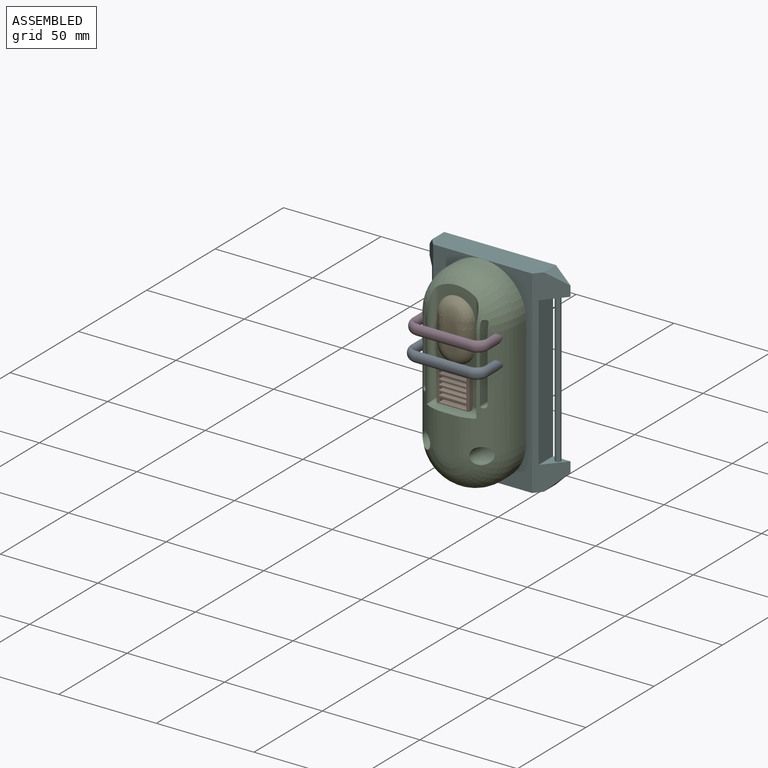
[diagram: assembled view]
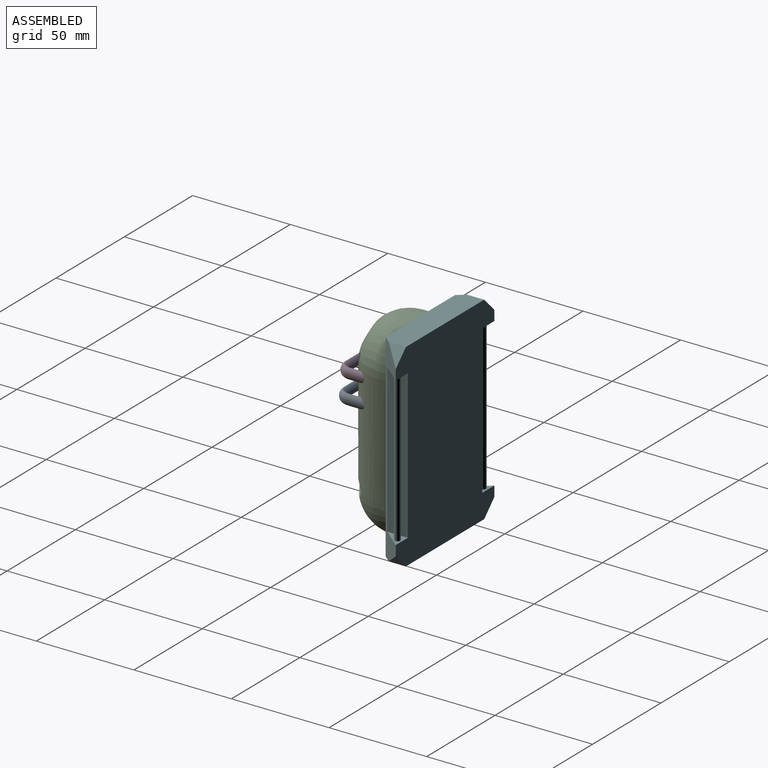
[diagram: assembled view, second angle]
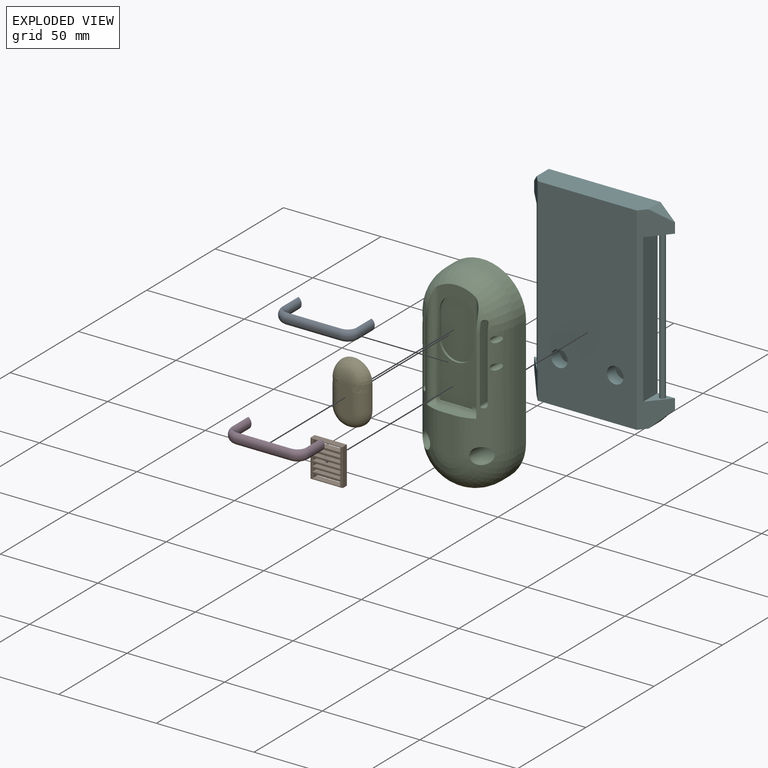
[diagram: exploded view]
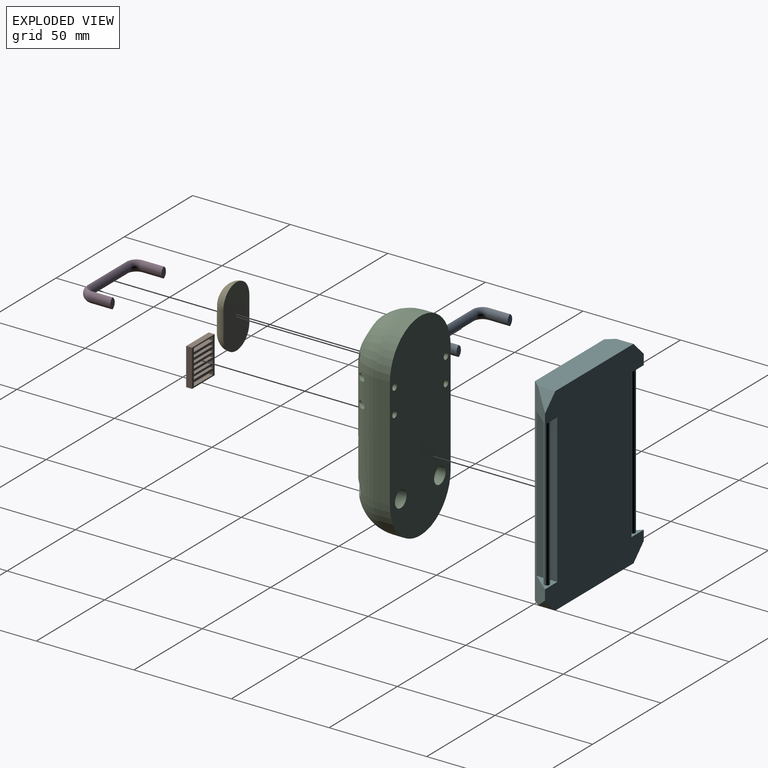
[diagram: exploded view, second angle]
ASSEMBLY  parts=6 mates=4
PART A: 32 faces, bbox 41.7x17.6x6.4 mm
  f0: cylinder r=3.17mm len=3.18mm, axis (0,0,-1), area 1.3mm2, adj f1,f11,f13,f24
  f1: plane 10.71x0.25mm, normal (1,0,0), area 2.7mm2, adj f0,f2,f12,f22
  f2: plane 5.6x3.18mm, normal (0,1,0), area 12.9mm2, adj f1,f3,f12,f14,f22,f23
  f3: plane 10.71x0.25mm, normal (-1,0,0), area 2.7mm2, adj f2,f4,f14,f23
  f4: cylinder r=6.35mm len=6.35mm, axis (0,0,-1), area 2.5mm2, adj f3,f5,f16,f25
  f5: plane 27.94x0.25mm, normal (0,-1,0), area 7.1mm2, adj f4,f6,f18,f27
  f6: cylinder r=6.35mm len=6.35mm, axis (0,0,-1), area 2.5mm2, adj f5,f7,f20,f29
  f7: plane 10.71x0.25mm, normal (1,0,0), area 2.7mm2, adj f6,f8,f21,f31
  f8: plane 5.6x3.18mm, normal (0,1,0), area 12.9mm2, adj f7,f9,f19,f21,f30,f31
  f9: plane 10.71x0.25mm, normal (-1,0,0), area 2.7mm2, adj f8,f10,f19,f30
  f10: cylinder r=3.17mm len=3.18mm, axis (0,0,-1), area 1.3mm2, adj f9,f11,f17,f28
  f11: plane 27.94x0.25mm, normal (0,1,0), area 7.1mm2, adj f0,f10,f15,f26
  f12: cylinder r=3.05mm len=10.71mm, axis (0,1,0), area 35mm2, adj f1,f2,f13,f14
  f13: torus R=6.22mm, axis (0,0,1), area 19.1mm2, adj f0,f12,f15,f16
  f14: cylinder r=3.05mm len=10.71mm, axis (0,-1,0), area 35mm2, adj f2,f3,f12,f16
  f15: cylinder r=3.05mm len=27.94mm, axis (-1,0,0), area 91.2mm2, adj f11,f13,f17,f18
  f16: torus R=3.3mm, axis (0,0,1), area 29.7mm2, adj f4,f13,f14,f18
  f17: torus R=6.22mm, axis (0,0,1), area 19.1mm2, adj f10,f15,f19,f20
  f18: cylinder r=3.05mm len=27.94mm, axis (1,0,0), area 91.2mm2, adj f5,f15,f16,f20
  f19: cylinder r=3.05mm len=10.71mm, axis (0,-1,0), area 35mm2, adj f8,f9,f17,f21
  f20: torus R=3.3mm, axis (0,0,1), area 29.7mm2, adj f6,f17,f18,f21
  f21: cylinder r=3.05mm len=10.71mm, axis (0,1,0), area 35mm2, adj f7,f8,f19,f20
  f22: cylinder r=3.05mm len=10.71mm, axis (0,-1,0), area 35mm2, adj f1,f2,f23,f24
  f23: cylinder r=3.05mm len=10.71mm, axis (0,1,0), area 35mm2, adj f2,f3,f22,f25
  f24: torus R=6.22mm, axis (0,0,1), area 19.1mm2, adj f0,f22,f25,f26
  f25: torus R=3.3mm, axis (0,0,1), area 29.7mm2, adj f4,f23,f24,f27
  f26: cylinder r=3.05mm len=27.94mm, axis (1,0,0), area 91.2mm2, adj f11,f24,f27,f28
  f27: cylinder r=3.05mm len=27.94mm, axis (-1,0,0), area 91.2mm2, adj f5,f25,f26,f29
  f28: torus R=6.22mm, axis (0,0,1), area 19.1mm2, adj f10,f26,f29,f30
  f29: torus R=3.3mm, axis (0,0,1), area 29.7mm2, adj f6,f27,f28,f31
  f30: cylinder r=3.05mm len=10.71mm, axis (0,1,0), area 35mm2, adj f8,f9,f28,f31
  f31: cylinder r=3.05mm len=10.71mm, axis (0,-1,0), area 35mm2, adj f7,f8,f29,f30
PART B: 66 faces, bbox 16.5x19.1x3.2 mm
  f0: plane 2.92x1.31mm, normal (-1,0,0), area 3.8mm2, adj f1,f31,f33,f34
  f1: plane 13.93x2.92mm, normal (0,1,0), area 40.7mm2, adj f0,f2,f33,f36
  f2: plane 2.92x1.31mm, normal (1,0,0), area 3.8mm2, adj f1,f31,f33,f37
  f3: plane 2.92x1.36mm, normal (-1,0,0), area 4mm2, adj f4,f24,f33,f39
  f4: plane 13.93x2.92mm, normal (0,1,0), area 40.7mm2, adj f3,f5,f33,f38
  f5: plane 2.92x1.36mm, normal (1,0,0), area 4mm2, adj f4,f24,f33,f40
  f6: plane 2.92x1.42mm, normal (-1,0,0), area 4.1mm2, adj f7,f25,f33,f43
  f7: plane 13.93x2.92mm, normal (0,1,0), area 40.7mm2, adj f6,f8,f33,f42
  f8: plane 2.92x1.42mm, normal (1,0,0), area 4.1mm2, adj f7,f25,f33,f44
  f9: plane 2.92x1.43mm, normal (-1,0,0), area 4.2mm2, adj f10,f26,f33,f47
  f10: plane 13.93x2.92mm, normal (0,1,0), area 40.7mm2, adj f9,f11,f33,f46
  f11: plane 2.92x1.43mm, normal (1,0,0), area 4.2mm2, adj f10,f26,f33,f48
  f12: plane 2.92x1.34mm, normal (-1,0,0), area 3.9mm2, adj f13,f27,f33,f51
  f13: plane 13.93x2.92mm, normal (0,1,0), area 40.7mm2, adj f12,f14,f33,f50
  f14: plane 2.92x1.34mm, normal (1,0,0), area 3.9mm2, adj f13,f27,f33,f52
  f15: plane 2.92x1.88mm, normal (-1,0,0), area 5.5mm2, adj f16,f28,f33,f55
  f16: plane 13.93x2.92mm, normal (0,1,0), area 40.7mm2, adj f15,f17,f33,f54
  f17: plane 2.92x1.88mm, normal (1,0,0), area 5.5mm2, adj f16,f28,f33,f56
  f18: plane 13.93x2.92mm, normal (0,-1,0), area 40.7mm2, adj f19,f29,f33,f59
  f19: plane 2.92x1.93mm, normal (-1,0,0), area 5.6mm2, adj f18,f20,f33,f58
  f20: plane 13.93x2.92mm, normal (0,1,0), area 40.7mm2, adj f19,f29,f33,f60
  f21: plane 16.51x2.92mm, normal (0,-1,0), area 48.2mm2, adj f22,f30,f33,f64
  f22: plane 19.05x2.92mm, normal (1,0,0), area 55.6mm2, adj f21,f23,f33,f62
  f23: plane 16.51x2.92mm, normal (0,1,0), area 48.2mm2, adj f22,f30,f33,f63
  f24: plane 13.93x2.92mm, normal (0,-1,0), area 40.7mm2, adj f3,f5,f33,f41
  f25: plane 13.93x2.92mm, normal (0,-1,0), area 40.7mm2, adj f6,f8,f33,f45
  f26: plane 13.93x2.92mm, normal (0,-1,0), area 40.7mm2, adj f9,f11,f33,f49
  f27: plane 13.93x2.92mm, normal (0,-1,0), area 40.7mm2, adj f12,f14,f33,f53
  f28: plane 13.93x2.92mm, normal (0,-1,0), area 40.7mm2, adj f15,f17,f33,f57
  f29: plane 2.92x1.93mm, normal (1,0,0), area 5.6mm2, adj f18,f20,f33,f61
  f30: plane 19.05x2.92mm, normal (-1,0,0), area 55.6mm2, adj f21,f23,f33,f65
  f31: plane 13.93x2.92mm, normal (0,-1,0), area 40.7mm2, adj f0,f2,f33,f35
  f32: plane 18.54x16mm, normal (0,0,1), area 91.3mm2, adj f34,f35,f36,f37,f38,f39,f40,f41
  f33: plane 19.05x16.51mm, normal (0,0,-1), area 165.8mm2, adj f0,f1,f2,f3,f4,f5,f6,f7
  f34: cylinder r=0.25mm len=1.82mm, axis (0,1,0), area 0.6mm2, adj f0,f32,f35,f36
  f35: cylinder r=0.25mm len=14.44mm, axis (-1,0,0), area 5.6mm2, adj f31,f32,f34,f37
  f36: cylinder r=0.25mm len=14.44mm, axis (1,0,0), area 5.6mm2, adj f1,f32,f34,f37
  f37: cylinder r=0.25mm len=1.82mm, axis (0,-1,0), area 0.6mm2, adj f2,f32,f35,f36
  f38: cylinder r=0.25mm len=14.44mm, axis (1,0,0), area 5.6mm2, adj f4,f32,f39,f40
  f39: cylinder r=0.25mm len=1.87mm, axis (0,1,0), area 0.6mm2, adj f3,f32,f38,f41
  f40: cylinder r=0.25mm len=1.87mm, axis (0,-1,0), area 0.6mm2, adj f5,f32,f38,f41
  f41: cylinder r=0.25mm len=14.44mm, axis (-1,0,0), area 5.6mm2, adj f24,f32,f39,f40
  f42: cylinder r=0.25mm len=14.44mm, axis (1,0,0), area 5.6mm2, adj f7,f32,f43,f44
  f43: cylinder r=0.25mm len=1.92mm, axis (0,1,0), area 0.6mm2, adj f6,f32,f42,f45
  f44: cylinder r=0.25mm len=1.92mm, axis (0,-1,0), area 0.6mm2, adj f8,f32,f42,f45
  f45: cylinder r=0.25mm len=14.44mm, axis (-1,0,0), area 5.6mm2, adj f25,f32,f43,f44
  f46: cylinder r=0.25mm len=14.44mm, axis (1,0,0), area 5.6mm2, adj f10,f32,f47,f48
  f47: cylinder r=0.25mm len=1.94mm, axis (0,1,0), area 0.6mm2, adj f9,f32,f46,f49
  f48: cylinder r=0.25mm len=1.94mm, axis (0,-1,0), area 0.6mm2, adj f11,f32,f46,f49
  f49: cylinder r=0.25mm len=14.44mm, axis (-1,0,0), area 5.6mm2, adj f26,f32,f47,f48
  f50: cylinder r=0.25mm len=14.44mm, axis (1,0,0), area 5.6mm2, adj f13,f32,f51,f52
  f51: cylinder r=0.25mm len=1.85mm, axis (0,1,0), area 0.6mm2, adj f12,f32,f50,f53
  f52: cylinder r=0.25mm len=1.85mm, axis (0,-1,0), area 0.6mm2, adj f14,f32,f50,f53
  f53: cylinder r=0.25mm len=14.44mm, axis (-1,0,0), area 5.6mm2, adj f27,f32,f51,f52
  f54: cylinder r=0.25mm len=14.44mm, axis (1,0,0), area 5.6mm2, adj f16,f32,f55,f56
  f55: cylinder r=0.25mm len=2.39mm, axis (0,1,0), area 0.8mm2, adj f15,f32,f54,f57
  f56: cylinder r=0.25mm len=2.39mm, axis (0,-1,0), area 0.8mm2, adj f17,f32,f54,f57
  f57: cylinder r=0.25mm len=14.44mm, axis (-1,0,0), area 5.6mm2, adj f28,f32,f55,f56
  f58: cylinder r=0.25mm len=2.44mm, axis (0,1,0), area 0.8mm2, adj f19,f32,f59,f60
  f59: cylinder r=0.25mm len=14.44mm, axis (-1,0,0), area 5.6mm2, adj f18,f32,f58,f61
  f60: cylinder r=0.25mm len=14.44mm, axis (1,0,0), area 5.6mm2, adj f20,f32,f58,f61
  f61: cylinder r=0.25mm len=2.44mm, axis (0,-1,0), area 0.8mm2, adj f29,f32,f59,f60
  f62: cylinder r=0.25mm len=19.05mm, axis (0,-1,0), area 7.5mm2, adj f22,f32,f63,f64
  f63: cylinder r=0.25mm len=16.51mm, axis (1,0,0), area 6.5mm2, adj f23,f32,f62,f65
  f64: cylinder r=0.25mm len=16.51mm, axis (-1,0,0), area 6.5mm2, adj f21,f32,f62,f65
  f65: cylinder r=0.25mm len=19.05mm, axis (0,1,0), area 7.5mm2, adj f30,f32,f63,f64
PART C: 43 faces, bbox 44.5x25.4x101.6 mm
  f0: plane 53.89x19.05mm, normal (0,-1,0), area 246.7mm2, adj f1,f4,f27,f28,f33,f34,f35,f36
  f1: cylinder r=3.17mm len=25.4mm, axis (1,0,0), area 87.7mm2, adj f0,f12,f27,f28,f38,f39,f41
  f2: cylinder r=19.05mm len=57.15mm, axis (0,0,1), area 1132.9mm2, adj f4,f6,f8,f11,f12,f14,f15,f17
  f3: plane 101.6x44.45mm, normal (0,1,0), area 3945.3mm2, adj f7,f8,f9,f10,f15,f16,f29,f30
  f4: torus R=3.17mm, axis (0,-1,0), area 972.1mm2, adj f0,f2,f5,f7,f13,f14,f17,f18
  f5: cylinder r=19.05mm len=57.15mm, axis (0,0,-1), area 1132.9mm2, adj f4,f6,f10,f11,f12,f13,f16,f23
  f6: torus R=3.17mm, axis (0,-1,0), area 1369.7mm2, adj f2,f5,f9,f11,f15,f16
  f7: cylinder r=22.23mm len=44.45mm, axis (0,1,0), area 440.6mm2, adj f3,f4,f8,f10
  f8: plane 57.15x6.31mm, normal (-1,0,0), area 360.7mm2, adj f2,f3,f7,f9
  f9: cylinder r=22.23mm len=44.45mm, axis (0,1,0), area 440.6mm2, adj f3,f6,f8,f10
  f10: plane 57.15x6.31mm, normal (1,0,0), area 360.7mm2, adj f3,f5,f7,f9
  f11: plane 20.64x6.35mm, normal (0,-1,0), area 126.7mm2, adj f2,f5,f6,f12
  f12: plane 25.4x3.18mm, normal (0,0,1), area 64.9mm2, adj f1,f2,f5,f11,f13,f14
  f13: plane 44.84x0.63mm, normal (-1,0,0), area 26.9mm2, adj f4,f5,f12,f28
  f14: plane 44.84x0.63mm, normal (1,0,0), area 26.9mm2, adj f2,f4,f12,f27
  f15: cylinder r=4.23mm len=24.08mm, axis (0,-1,0), area 564.6mm2, adj f2,f3,f6
  f16: cylinder r=4.23mm len=24.08mm, axis (0,-1,0), area 564.6mm2, adj f3,f5,f6
  f17: plane 38.1x9.35mm, normal (-1,0,0), area 355.3mm2, adj f2,f4,f18,f20,f21
  f18: cylinder r=1.27mm len=8.83mm, axis (0,-1,0), area 30.1mm2, adj f4,f17,f19,f21
  f19: plane 38.1x7.26mm, normal (1,0,0), area 275.5mm2, adj f2,f4,f18,f20,f21
  f20: cylinder r=1.27mm len=9.35mm, axis (0,-1,0), area 33.3mm2, adj f2,f17,f19,f21
  f21: plane 40.64x2.54mm, normal (0,-1,0), area 101.8mm2, adj f17,f18,f19,f20
  f22: cylinder r=1.27mm len=8.83mm, axis (0,-1,0), area 30.1mm2, adj f4,f23,f25,f26
  f23: plane 38.1x9.35mm, normal (1,0,0), area 355.3mm2, adj f4,f5,f22,f24,f26
  f24: cylinder r=1.27mm len=9.35mm, axis (0,-1,0), area 33.3mm2, adj f5,f23,f25,f26
  f25: plane 38.1x7.26mm, normal (-1,0,0), area 275.5mm2, adj f4,f5,f22,f24,f26
  f26: plane 40.64x2.54mm, normal (0,-1,0), area 101.8mm2, adj f22,f23,f24,f25
  f27: cylinder r=3.17mm len=54.22mm, axis (0,0,-1), area 247.1mm2, adj f0,f1,f4,f14
  f28: cylinder r=3.17mm len=54.22mm, axis (0,0,1), area 247.1mm2, adj f0,f1,f4,f13
  f29: cylinder r=1.65mm len=19.26mm, axis (0,1,0), area 176.5mm2, adj f2,f3
  f30: cylinder r=1.65mm len=19.26mm, axis (0,1,0), area 176.5mm2, adj f3,f5
  f31: cylinder r=1.65mm len=19.26mm, axis (0,1,0), area 176.5mm2, adj f3,f5
  f32: cylinder r=1.65mm len=19.26mm, axis (0,1,0), area 176.5mm2, adj f2,f3
  f33: cylinder r=8.89mm len=17.78mm, axis (0,-1,0), area 35.5mm2, adj f0,f34,f36,f37
  f34: plane 12.7x1.27mm, normal (1,0,0), area 16.1mm2, adj f0,f33,f35,f37
  f35: cylinder r=8.89mm len=17.78mm, axis (0,-1,0), area 35.5mm2, adj f0,f34,f36,f37
  f36: plane 12.7x1.27mm, normal (-1,0,0), area 16.1mm2, adj f0,f33,f35,f37
  f37: plane 30.48x17.78mm, normal (0,-1,0), area 474.1mm2, adj f33,f34,f35,f36
  f38: plane 16.51x0.68mm, normal (0,0,1), area 11.2mm2, adj f1,f39,f41,f42
  f39: plane 19.05x0.68mm, normal (-1,0,0), area 5.1mm2, adj f0,f1,f38,f40,f42
  f40: plane 16.51x0.25mm, normal (0,0,-1), area 4.2mm2, adj f0,f39,f41,f42
  f41: plane 19.05x0.68mm, normal (1,0,0), area 5.1mm2, adj f0,f1,f38,f40,f42
  f42: plane 19.05x16.51mm, normal (0,-1,0), area 314.5mm2, adj f38,f39,f40,f41
PART D: same geometry as A
PART E: 13 faces, bbox 19.1x6.4x31.8 mm
  f0: plane 31.75x19.05mm, normal (0,1,0), area 527mm2, adj f1,f2,f3,f4
  f1: plane 12.7x0.02mm, normal (1,0,0), area 0.3mm2, adj f0,f2,f4,f10,f12
  f2: cylinder r=9.53mm len=19.05mm, axis (0,1,0), area 0.6mm2, adj f0,f1,f3,f11
  f3: plane 12.7x0.02mm, normal (-1,0,0), area 0.3mm2, adj f0,f2,f4,f7,f8
  f4: cylinder r=9.53mm len=19.05mm, axis (0,1,0), area 0.6mm2, adj f0,f1,f3,f9
  f5: torus R=3.17mm, axis (0,-1,0), area 36.9mm2, adj f6,f7,f9,f10
  f6: plane 15.71x6.35mm, normal (0,-1,0), area 91.1mm2, adj f5,f8,f11,f12
  f7: bspline ~6.35x6.35mm, area 35.7mm2, adj f3,f5,f8,f9
  f8: cylinder r=6.35mm len=9.36mm, axis (0,0,1), area 93.4mm2, adj f3,f6,f7,f11
  f9: bspline ~19.05x11.6mm, area 197.4mm2, adj f4,f5,f7,f10
  f10: bspline ~6.35x6.35mm, area 35.7mm2, adj f1,f5,f9,f12
  f11: torus R=3.17mm, axis (0,-1,0), area 226.2mm2, adj f2,f6,f8,f12
  f12: cylinder r=6.35mm len=9.36mm, axis (0,0,-1), area 93.4mm2, adj f1,f6,f10,f11
PART F: 24 faces, bbox 72.2x12.7x101.6 mm
  f0: plane 101.6x50.8mm, normal (0,-1,0), area 5048.7mm2, adj f4,f5,f6,f7,f20,f22
  f1: plane 101.6x72.2mm, normal (0,1,0), area 5864.5mm2, adj f2,f3,f4,f5,f8,f9,f10,f12
  f2: plane 101.6x12.67mm, normal (0.76,-0.65,0), area 544.7mm2, adj f1,f4,f5,f6,f12,f13,f14,f16
  f3: plane 101.6x12.67mm, normal (-0.76,-0.65,0), area 544.9mm2, adj f1,f4,f5,f7,f8,f9,f10,f17
  f4: plane 57.27x12.7mm, normal (0,0,-1), area 714.8mm2, adj f0,f1,f2,f3,f6,f7,f18,f19
  f5: plane 57.27x12.7mm, normal (0,0,1), area 714.8mm2, adj f0,f1,f2,f3,f6,f7,f16,f17
  f6: plane 101.6x0.04mm, normal (1,0,0), area 3.1mm2, adj f0,f2,f4,f5
  f7: plane 101.6x0.03mm, normal (-1,0,0), area 3.1mm2, adj f0,f3,f4,f5
  f8: plane 76.2x10.56mm, normal (-1,0,0), area 804.9mm2, adj f1,f3,f9,f10
  f9: plane 10.56x8.92mm, normal (0,0,1), area 40.7mm2, adj f1,f3,f8,f11
  f10: plane 10.56x8.92mm, normal (0,0,-1), area 40.7mm2, adj f1,f3,f8,f11
  f11: cylinder r=1.43mm len=76.2mm, axis (0,0,1), area 684.2mm2, adj f9,f10
  f12: plane 76.2x10.56mm, normal (1,0,0), area 804.9mm2, adj f1,f2,f13,f14
  f13: plane 10.56x8.92mm, normal (0,0,1), area 40.7mm2, adj f1,f2,f12,f15
  f14: plane 10.56x8.92mm, normal (0,0,-1), area 40.7mm2, adj f1,f2,f12,f15
  f15: cylinder r=1.43mm len=76.2mm, axis (0,0,1), area 684.2mm2, adj f13,f14
  f16: plane 8.84x7.46mm, normal (0.71,0,0.71), area 46.7mm2, adj f1,f2,f5
  f17: plane 8.84x7.46mm, normal (-0.71,0,0.71), area 46.7mm2, adj f1,f3,f5
  f18: plane 8.84x7.46mm, normal (-0.71,0,-0.71), area 46.7mm2, adj f1,f3,f4
  f19: plane 8.84x7.46mm, normal (0.71,0,-0.71), area 46.7mm2, adj f1,f2,f4
  f20: cylinder r=4.23mm len=8.47mm, axis (0,-1,0), area 168.9mm2, adj f0,f21
  f21: plane 8.47x8.47mm, normal (0,-1,0), area 56.3mm2, adj f20
  f22: cylinder r=4.23mm len=8.47mm, axis (0,-1,0), area 168.9mm2, adj f0,f23
  f23: plane 8.47x8.47mm, normal (0,-1,0), area 56.3mm2, adj f22
PLACE A t=(-75.03,-12.15,-10.05)mm
PLACE B rot(axis=(0,-0.71,0.71),180deg) t=(-74.72,-44.46,-7.19)mm
PLACE C t=(-74.88,-12.96,-7.02)mm fixed
PLACE D t=(-74.94,-11.35,2.18)mm
PLACE E t=(-74.88,-11.71,-7.19)mm
PLACE F t=(-74.87,-13,-7.02)mm
MATE fastened F.f22 <-> C.f15  axis (0,-1,0) through (-89.15,-25.7,-35.47)mm
MATE fastened C.f42 <-> B.f33  axis (0,-1,0) through (-83.13,-44.46,2.5)mm
MATE fastened D.f2 <-> C.f29  axis (0,1,0) through (-93.67,-38.4,18.06)mm
MATE fastened C.f33 <-> E.f4  axis (0,-1,0) through (-74.88,-43.44,24.73)mm
